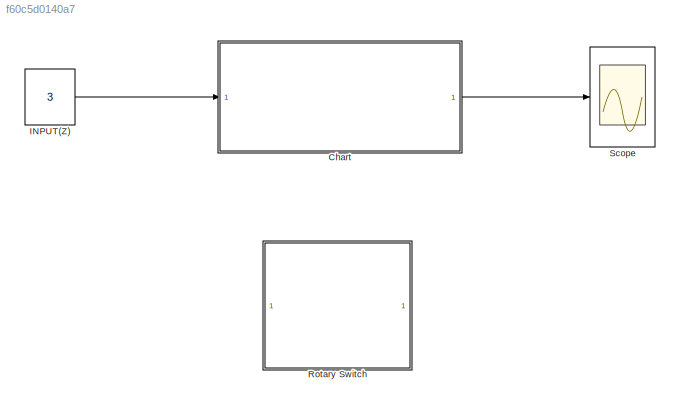
MODEL slx_f60c5d0140a7
KIND model
CONFIG AbsTol = auto
CONFIG FixedStep = 0.1
CONFIG MaxStep = auto
CONFIG MinStep = auto
CONFIG RelTol = 1e-3
CONFIG SampleTimeConstraint = Unconstrained
CONFIG Solver = FixedStepDiscrete
CONFIG SolverMode = Auto
CONFIG SolverName = FixedStepDiscrete
CONFIG StartTime = 0.0
CONFIG StopTime = 7
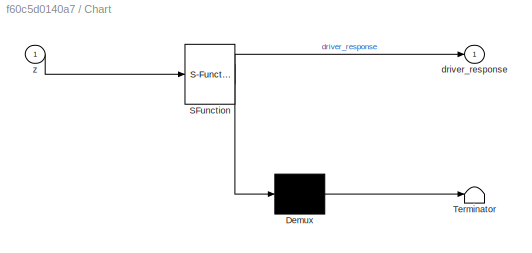
BLOCK [SubSystem] Chart
  ErrorFcn = Stateflow.Translate.translate
  PermitHierarchicalResolution = ExplicitOnly
  Ports = [1, 1]
  RequestExecContextInheritance = off
  SFBlockType = Chart
  TreatAsAtomicUnit = on
  Variant = off
BLOCK [Demux] Chart/ Demux 
  Outputs = 1
  Ports = [1, 1]
BLOCK [S-Function] Chart/ SFunction 
  EnableBusSupport = on
  FunctionName = sf_sfun
  PortCounts = [1 2]
  Ports = [1, 2]
  SFunctionDeploymentMode = off
  Tag = Stateflow S-Function TrafficLight_SFD 3
BLOCK [Terminator] Chart/ Terminator 
BLOCK [Outport] Chart/driver_response
  IconDisplay = Port number
BLOCK [Inport] Chart/z
  IconDisplay = Port number
BLOCK [Constant] INPUT(Z)
  Value = 3
BLOCK [SubSystem] Rotary Switch
  DialogController = hmiCreateDDGDialog
  IsWebBlock = on
  MaskHideContents = on
  Ports = []
  RequestExecContextInheritance = off
  Variant = off
BLOCK [Scope] Scope
  Ports = [1]
  ScopeSpecificationString = Simulink.scopes.TimeScopeBlockCfg('CurrentConfiguration', extmgr.ConfigurationSet(extmgr.Configuration('Core','General UI',true),extmgr.Configuration('Core','Source UI',true),extmgr.Configuration('Sources','WiredSimulink',true),extmgr.Configuration('Visuals','Time Domain',true,'SerializedDisplays',{struct('MinYLimReal','-0.125','MaxYLimReal','1.125','YLabelReal','','MinYLimMag','0.00000','MaxYLimM...<+1341ch>
LINE Chart:1 -> Scope:1
LINE INPUT(Z):1 -> Chart:1
CHART Chart states=8 transitions=8
  STATE_LABEL 'START'
  STATE_LABEL 'YELLOW\nentry: driver_response=0'
  STATE_LABEL 'RED\nentry: driver_response=1'
  STATE_LABEL 'GREEN\nentry: driver_response=0\n'
  STATE_LABEL 'CAR_BEGINS_TO_MOVE\nentry: driver_response=0.5;'
  STATE_LABEL 'CAR_BEGINS_TO_STOP\nentry: driver_response=0.5\n'
  STATE_LABEL 'CAR_MOVES\nentry: driver_response=1;'
  STATE_LABEL 'CAR_STOPS_COMPLETELY\nentry: driver_response=0;\n'
